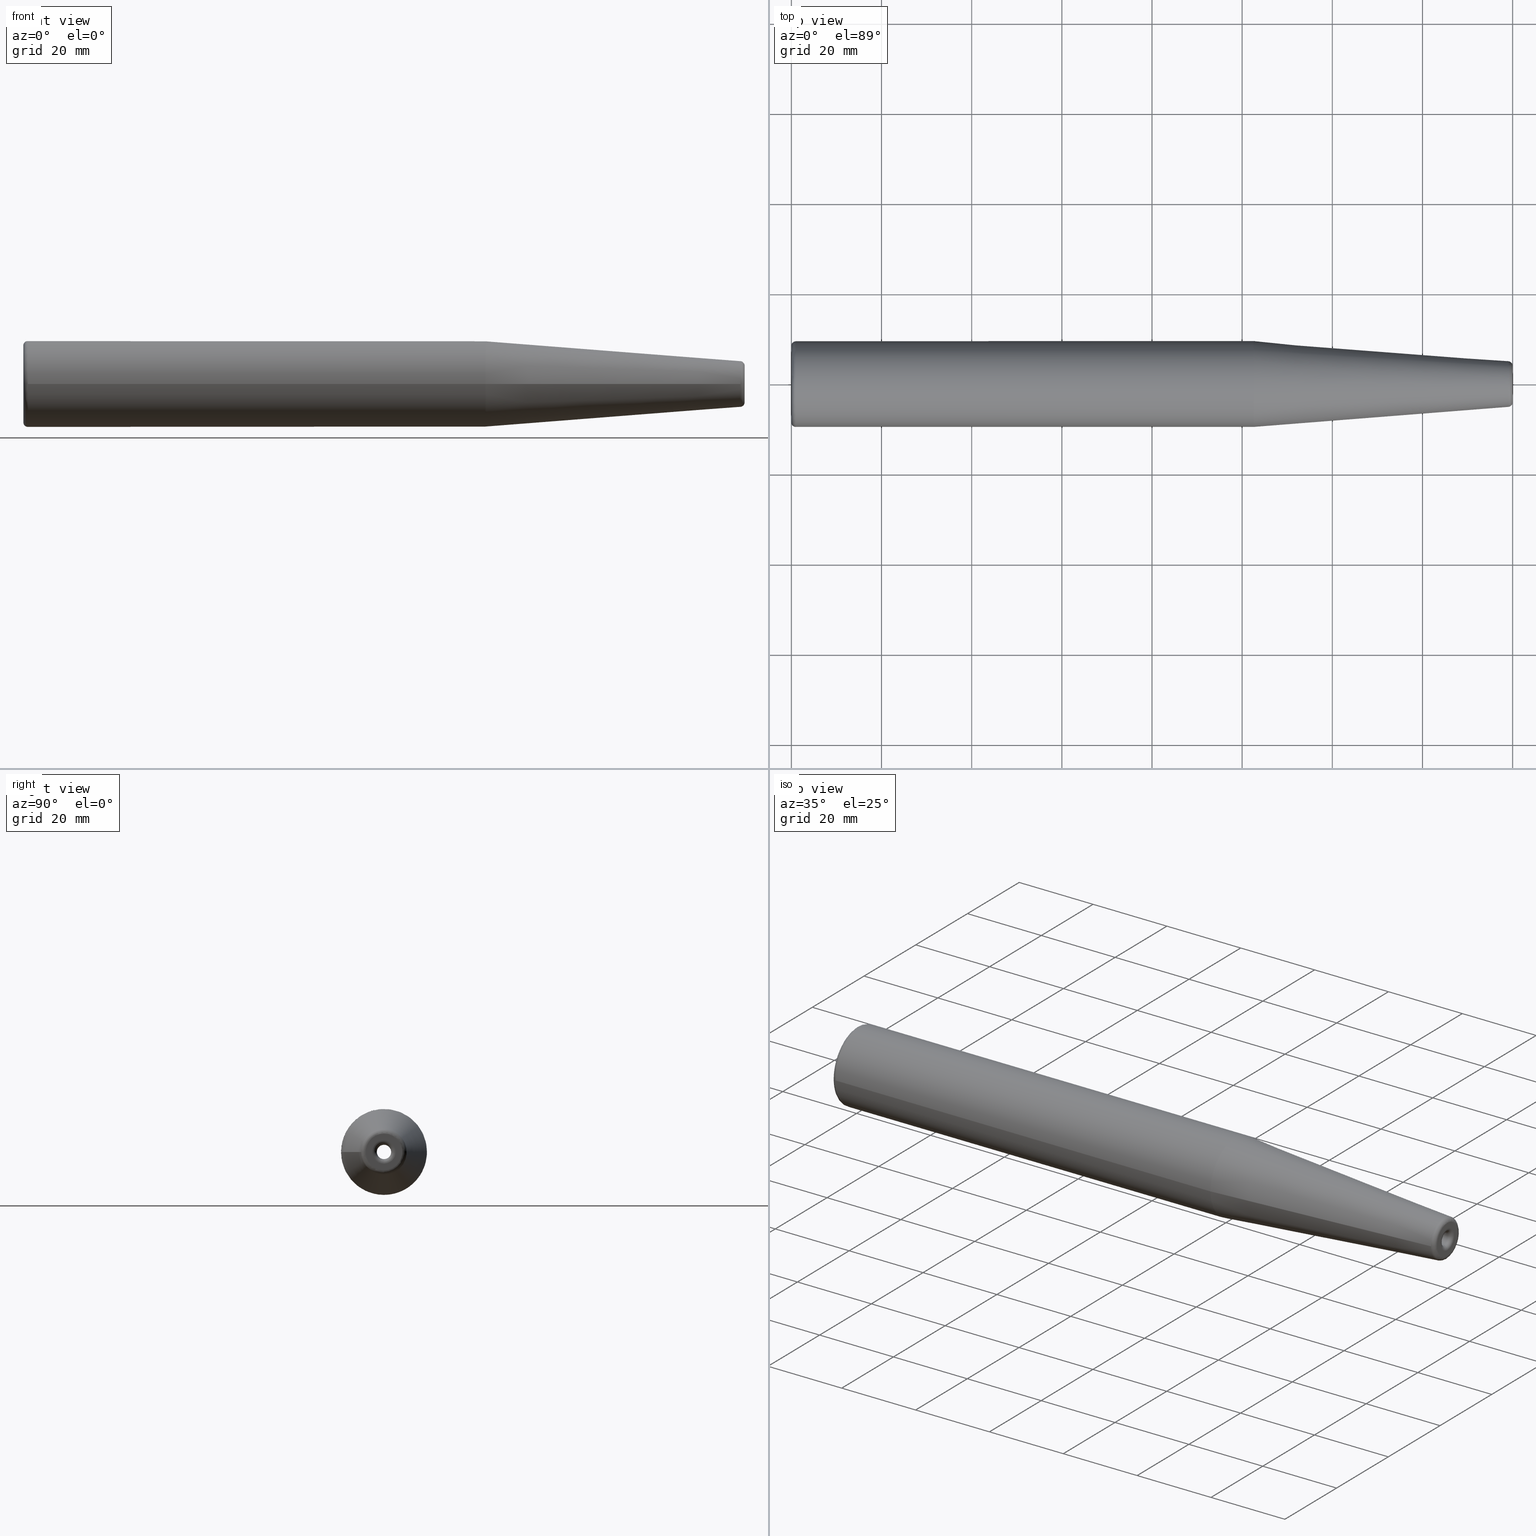
[diagram: canonical four-view strip — front | top / right | iso, engineering-drawing reading convention]
A machine part, canonical four-view strip (front | top / right | iso — engineering-drawing reading convention). The complete STEP part file that produces these views, byte-faithful:
ISO-10303-21;
HEADER;
/* Generated by software containing ST-Developer
 * from STEP Tools, Inc. (www.steptools.com) 
 */

FILE_DESCRIPTION(
/* description */ (''),
/* implementation_level */ '2;1');

FILE_NAME(
/* name */ 'VS030_ST19.05-SFH3.175-160.stp',
/* time_stamp */ '2024-06-20T09:00:01+09:00',
/* author */ ('YSH'),
/* organization */ (''),
/* preprocessor_version */ 'ST-DEVELOPER v20',
/* originating_system */ 'Autodesk Inventor 2024',
/* authorisation */ '');

FILE_SCHEMA (('AUTOMOTIVE_DESIGN { 1 0 10303 214 3 1 1 }'));
ENDSEC;

DATA;
#10=MECHANICAL_DESIGN_GEOMETRIC_PRESENTATION_REPRESENTATION('',(#13),#327);
#11=SHAPE_REPRESENTATION_RELATIONSHIP('SRR','None',#334,#12);
#12=ADVANCED_BREP_SHAPE_REPRESENTATION('',(#14),#326);
#13=STYLED_ITEM('',(#343),#14);
#14=MANIFOLD_SOLID_BREP('\X2\C194B9ACB4DC\X0\1',#166);
#15=CONICAL_SURFACE('',#199,1.25,1.02974425867665);
#16=CONICAL_SURFACE('',#215,7.2625,0.0785398163397451);
#17=FACE_BOUND('',#47,.T.);
#18=FACE_BOUND('',#53,.T.);
#19=PLANE('',#197);
#20=PLANE('',#210);
#21=LINE('',#288,#26);
#22=LINE('',#298,#27);
#23=LINE('',#302,#28);
#24=LINE('',#313,#29);
#25=LINE('',#323,#30);
#26=VECTOR('',#230,1.5875);
#27=VECTOR('',#243,1.25);
#28=VECTOR('',#248,2.5);
#29=VECTOR('',#261,9.52499999999999);
#30=VECTOR('',#276,7.2625);
#31=CYLINDRICAL_SURFACE('',#194,1.5875);
#32=CYLINDRICAL_SURFACE('',#201,2.5);
#33=CYLINDRICAL_SURFACE('',#208,9.52499999999999);
#34=FACE_OUTER_BOUND('',#44,.T.);
#35=FACE_OUTER_BOUND('',#45,.T.);
#36=FACE_OUTER_BOUND('',#46,.T.);
#37=FACE_OUTER_BOUND('',#48,.T.);
#38=FACE_OUTER_BOUND('',#49,.T.);
#39=FACE_OUTER_BOUND('',#50,.T.);
#40=FACE_OUTER_BOUND('',#51,.T.);
#41=FACE_OUTER_BOUND('',#52,.T.);
#42=FACE_OUTER_BOUND('',#54,.T.);
#43=FACE_OUTER_BOUND('',#55,.T.);
#44=EDGE_LOOP('',(#109,#110,#111,#112,#113));
#45=EDGE_LOOP('',(#114,#115,#116,#117,#118,#119));
#46=EDGE_LOOP('',(#120));
#47=EDGE_LOOP('',(#121));
#48=EDGE_LOOP('',(#122,#123,#124,#125,#126));
#49=EDGE_LOOP('',(#127,#128,#129,#130));
#50=EDGE_LOOP('',(#131,#132,#133,#134,#135));
#51=EDGE_LOOP('',(#136,#137,#138,#139,#140));
#52=EDGE_LOOP('',(#141));
#53=EDGE_LOOP('',(#142));
#54=EDGE_LOOP('',(#143,#144,#145,#146,#147));
#55=EDGE_LOOP('',(#148,#149,#150,#151,#152));
#56=CIRCLE('',#190,2.5875);
#57=CIRCLE('',#191,1.);
#58=CIRCLE('',#192,1.5875);
#59=CIRCLE('',#193,1.5875);
#60=CIRCLE('',#195,1.5875);
#61=CIRCLE('',#196,1.5875);
#62=CIRCLE('',#198,4.07560950834179);
#63=CIRCLE('',#200,2.5);
#64=CIRCLE('',#202,2.5);
#65=CIRCLE('',#204,8.52499999999999);
#66=CIRCLE('',#205,1.);
#67=CIRCLE('',#206,9.52499999999999);
#68=CIRCLE('',#207,9.52499999999999);
#69=CIRCLE('',#209,9.525);
#70=CIRCLE('',#212,5.07252684207492);
#71=CIRCLE('',#213,5.07252684207492);
#72=CIRCLE('',#214,1.);
#73=VERTEX_POINT('',#279);
#74=VERTEX_POINT('',#281);
#75=VERTEX_POINT('',#283);
#76=VERTEX_POINT('',#287);
#77=VERTEX_POINT('',#289);
#78=VERTEX_POINT('',#293);
#79=VERTEX_POINT('',#296);
#80=VERTEX_POINT('',#300);
#81=VERTEX_POINT('',#304);
#82=VERTEX_POINT('',#306);
#83=VERTEX_POINT('',#308);
#84=VERTEX_POINT('',#312);
#85=VERTEX_POINT('',#317);
#86=VERTEX_POINT('',#318);
#87=EDGE_CURVE('',#73,#73,#56,.T.);
#88=EDGE_CURVE('',#73,#74,#57,.T.);
#89=EDGE_CURVE('',#74,#75,#58,.T.);
#90=EDGE_CURVE('',#75,#74,#59,.T.);
#91=EDGE_CURVE('',#75,#76,#21,.T.);
#92=EDGE_CURVE('',#77,#76,#60,.T.);
#93=EDGE_CURVE('',#76,#77,#61,.T.);
#94=EDGE_CURVE('',#78,#78,#62,.T.);
#95=EDGE_CURVE('',#79,#79,#63,.T.);
#96=EDGE_CURVE('',#79,#77,#22,.T.);
#97=EDGE_CURVE('',#80,#80,#64,.T.);
#98=EDGE_CURVE('',#80,#79,#23,.T.);
#99=EDGE_CURVE('',#81,#81,#65,.T.);
#100=EDGE_CURVE('',#81,#82,#66,.T.);
#101=EDGE_CURVE('',#82,#83,#67,.T.);
#102=EDGE_CURVE('',#83,#82,#68,.T.);
#103=EDGE_CURVE('',#83,#84,#24,.T.);
#104=EDGE_CURVE('',#84,#84,#69,.T.);
#105=EDGE_CURVE('',#85,#86,#70,.T.);
#106=EDGE_CURVE('',#86,#85,#71,.T.);
#107=EDGE_CURVE('',#85,#78,#72,.T.);
#108=EDGE_CURVE('',#84,#86,#25,.T.);
#109=ORIENTED_EDGE('',*,*,#87,.T.);
#110=ORIENTED_EDGE('',*,*,#88,.T.);
#111=ORIENTED_EDGE('',*,*,#89,.T.);
#112=ORIENTED_EDGE('',*,*,#90,.T.);
#113=ORIENTED_EDGE('',*,*,#88,.F.);
#114=ORIENTED_EDGE('',*,*,#89,.F.);
#115=ORIENTED_EDGE('',*,*,#90,.F.);
#116=ORIENTED_EDGE('',*,*,#91,.T.);
#117=ORIENTED_EDGE('',*,*,#92,.F.);
#118=ORIENTED_EDGE('',*,*,#93,.F.);
#119=ORIENTED_EDGE('',*,*,#91,.F.);
#120=ORIENTED_EDGE('',*,*,#94,.F.);
#121=ORIENTED_EDGE('',*,*,#87,.F.);
#122=ORIENTED_EDGE('',*,*,#95,.T.);
#123=ORIENTED_EDGE('',*,*,#96,.T.);
#124=ORIENTED_EDGE('',*,*,#92,.T.);
#125=ORIENTED_EDGE('',*,*,#93,.T.);
#126=ORIENTED_EDGE('',*,*,#96,.F.);
#127=ORIENTED_EDGE('',*,*,#97,.F.);
#128=ORIENTED_EDGE('',*,*,#98,.T.);
#129=ORIENTED_EDGE('',*,*,#95,.F.);
#130=ORIENTED_EDGE('',*,*,#98,.F.);
#131=ORIENTED_EDGE('',*,*,#99,.T.);
#132=ORIENTED_EDGE('',*,*,#100,.T.);
#133=ORIENTED_EDGE('',*,*,#101,.T.);
#134=ORIENTED_EDGE('',*,*,#102,.T.);
#135=ORIENTED_EDGE('',*,*,#100,.F.);
#136=ORIENTED_EDGE('',*,*,#102,.F.);
#137=ORIENTED_EDGE('',*,*,#103,.T.);
#138=ORIENTED_EDGE('',*,*,#104,.T.);
#139=ORIENTED_EDGE('',*,*,#103,.F.);
#140=ORIENTED_EDGE('',*,*,#101,.F.);
#141=ORIENTED_EDGE('',*,*,#99,.F.);
#142=ORIENTED_EDGE('',*,*,#97,.T.);
#143=ORIENTED_EDGE('',*,*,#105,.T.);
#144=ORIENTED_EDGE('',*,*,#106,.T.);
#145=ORIENTED_EDGE('',*,*,#107,.T.);
#146=ORIENTED_EDGE('',*,*,#94,.T.);
#147=ORIENTED_EDGE('',*,*,#107,.F.);
#148=ORIENTED_EDGE('',*,*,#104,.F.);
#149=ORIENTED_EDGE('',*,*,#108,.T.);
#150=ORIENTED_EDGE('',*,*,#105,.F.);
#151=ORIENTED_EDGE('',*,*,#106,.F.);
#152=ORIENTED_EDGE('',*,*,#108,.F.);
#153=TOROIDAL_SURFACE('',#189,2.5875,1.);
#154=TOROIDAL_SURFACE('',#203,8.52499999999999,1.);
#155=TOROIDAL_SURFACE('',#211,4.07560950834179,1.);
#156=ADVANCED_FACE('',(#34),#153,.T.);
#157=ADVANCED_FACE('',(#35),#31,.F.);
#158=ADVANCED_FACE('',(#36,#17),#19,.T.);
#159=ADVANCED_FACE('',(#37),#15,.F.);
#160=ADVANCED_FACE('',(#38),#32,.F.);
#161=ADVANCED_FACE('',(#39),#154,.T.);
#162=ADVANCED_FACE('',(#40),#33,.T.);
#163=ADVANCED_FACE('',(#41,#18),#20,.T.);
#164=ADVANCED_FACE('',(#42),#155,.T.);
#165=ADVANCED_FACE('',(#43),#16,.T.);
#166=CLOSED_SHELL('',(#156,#157,#158,#159,#160,#161,#162,#163,#164,#165));
#167=DERIVED_UNIT_ELEMENT(#170,1.);
#168=DERIVED_UNIT_ELEMENT(#329,-3.);
#169=DIMENSIONAL_EXPONENTS(0.,1.,0.,0.,0.,0.,0.);
#170=(
CONVERSION_BASED_UNIT('gram',#172)
MASS_UNIT()
NAMED_UNIT(#169)
);
#171=(
MASS_UNIT()
NAMED_UNIT(*)
SI_UNIT(.KILO.,.GRAM.)
);
#172=MASS_MEASURE_WITH_UNIT(MASS_MEASURE(0.001),#171);
#173=DERIVED_UNIT((#167,#168));
#174=MEASURE_REPRESENTATION_ITEM('density measure',
POSITIVE_RATIO_MEASURE(1.),#173);
#175=PROPERTY_DEFINITION_REPRESENTATION(#180,#177);
#176=PROPERTY_DEFINITION_REPRESENTATION(#181,#178);
#177=REPRESENTATION('material name',(#179),#326);
#178=REPRESENTATION('density',(#174),#326);
#179=DESCRIPTIVE_REPRESENTATION_ITEM('\X2\C77CBC18\X0\','\X2\C77CBC18\X0\');
#180=PROPERTY_DEFINITION('material property','material name',#336);
#181=PROPERTY_DEFINITION('material property','density of part',#336);
#182=DATE_TIME_ROLE('creation_date');
#183=APPLIED_DATE_AND_TIME_ASSIGNMENT(#184,#182,(#336));
#184=DATE_AND_TIME(#185,#186);
#185=CALENDAR_DATE(2024,15,1);
#186=LOCAL_TIME(0,0,0.,#187);
#187=COORDINATED_UNIVERSAL_TIME_OFFSET(0,0,.BEHIND.);
#188=AXIS2_PLACEMENT_3D('',#277,#216,#217);
#189=AXIS2_PLACEMENT_3D('',#278,#218,#219);
#190=AXIS2_PLACEMENT_3D('',#280,#220,#221);
#191=AXIS2_PLACEMENT_3D('',#282,#222,#223);
#192=AXIS2_PLACEMENT_3D('',#284,#224,#225);
#193=AXIS2_PLACEMENT_3D('',#285,#226,#227);
#194=AXIS2_PLACEMENT_3D('',#286,#228,#229);
#195=AXIS2_PLACEMENT_3D('',#290,#231,#232);
#196=AXIS2_PLACEMENT_3D('',#291,#233,#234);
#197=AXIS2_PLACEMENT_3D('',#292,#235,#236);
#198=AXIS2_PLACEMENT_3D('',#294,#237,#238);
#199=AXIS2_PLACEMENT_3D('',#295,#239,#240);
#200=AXIS2_PLACEMENT_3D('',#297,#241,#242);
#201=AXIS2_PLACEMENT_3D('',#299,#244,#245);
#202=AXIS2_PLACEMENT_3D('',#301,#246,#247);
#203=AXIS2_PLACEMENT_3D('',#303,#249,#250);
#204=AXIS2_PLACEMENT_3D('',#305,#251,#252);
#205=AXIS2_PLACEMENT_3D('',#307,#253,#254);
#206=AXIS2_PLACEMENT_3D('',#309,#255,#256);
#207=AXIS2_PLACEMENT_3D('',#310,#257,#258);
#208=AXIS2_PLACEMENT_3D('',#311,#259,#260);
#209=AXIS2_PLACEMENT_3D('',#314,#262,#263);
#210=AXIS2_PLACEMENT_3D('',#315,#264,#265);
#211=AXIS2_PLACEMENT_3D('',#316,#266,#267);
#212=AXIS2_PLACEMENT_3D('',#319,#268,#269);
#213=AXIS2_PLACEMENT_3D('',#320,#270,#271);
#214=AXIS2_PLACEMENT_3D('',#321,#272,#273);
#215=AXIS2_PLACEMENT_3D('',#322,#274,#275);
#216=DIRECTION('axis',(0.,0.,1.));
#217=DIRECTION('refdir',(1.,0.,0.));
#218=DIRECTION('center_axis',(-1.,0.,0.));
#219=DIRECTION('ref_axis',(0.,0.,1.));
#220=DIRECTION('center_axis',(1.,0.,0.));
#221=DIRECTION('ref_axis',(0.,-1.22464679914735E-16,1.));
#222=DIRECTION('center_axis',(0.,-1.,1.22464679914735E-16));
#223=DIRECTION('ref_axis',(0.,-1.22464679914735E-16,-1.));
#224=DIRECTION('center_axis',(-1.,0.,0.));
#225=DIRECTION('ref_axis',(0.,-1.22464679914735E-16,1.));
#226=DIRECTION('center_axis',(-1.,0.,0.));
#227=DIRECTION('ref_axis',(0.,-1.22464679914735E-16,1.));
#228=DIRECTION('center_axis',(1.,0.,0.));
#229=DIRECTION('ref_axis',(0.,0.,-1.));
#230=DIRECTION('',(-1.,0.,0.));
#231=DIRECTION('center_axis',(1.,0.,0.));
#232=DIRECTION('ref_axis',(0.,0.,-1.));
#233=DIRECTION('center_axis',(1.,0.,0.));
#234=DIRECTION('ref_axis',(0.,0.,-1.));
#235=DIRECTION('center_axis',(1.,0.,0.));
#236=DIRECTION('ref_axis',(0.,0.,-1.));
#237=DIRECTION('center_axis',(-1.,0.,0.));
#238=DIRECTION('ref_axis',(0.,-1.,-1.83697019872103E-16));
#239=DIRECTION('center_axis',(-1.,0.,0.));
#240=DIRECTION('ref_axis',(0.,0.,1.));
#241=DIRECTION('center_axis',(-1.,0.,0.));
#242=DIRECTION('ref_axis',(0.,0.,1.));
#243=DIRECTION('',(0.515038074910054,1.04972719113862E-16,0.857167300702112));
#244=DIRECTION('center_axis',(-1.,0.,0.));
#245=DIRECTION('ref_axis',(0.,0.,1.));
#246=DIRECTION('center_axis',(1.,0.,0.));
#247=DIRECTION('ref_axis',(0.,0.,1.));
#248=DIRECTION('',(1.,0.,0.));
#249=DIRECTION('center_axis',(-1.,0.,0.));
#250=DIRECTION('ref_axis',(0.,0.,1.));
#251=DIRECTION('center_axis',(1.,0.,0.));
#252=DIRECTION('ref_axis',(0.,-1.,-1.83697019872103E-16));
#253=DIRECTION('center_axis',(0.,-1.,1.22464679914735E-16));
#254=DIRECTION('ref_axis',(0.,-1.22464679914735E-16,-1.));
#255=DIRECTION('center_axis',(-1.,0.,0.));
#256=DIRECTION('ref_axis',(0.,-1.,-1.83697019872103E-16));
#257=DIRECTION('center_axis',(-1.,0.,0.));
#258=DIRECTION('ref_axis',(0.,-1.,-1.83697019872103E-16));
#259=DIRECTION('center_axis',(-1.,0.,0.));
#260=DIRECTION('ref_axis',(0.,1.,0.));
#261=DIRECTION('',(1.,0.,0.));
#262=DIRECTION('center_axis',(-1.,0.,0.));
#263=DIRECTION('ref_axis',(0.,0.,1.));
#264=DIRECTION('center_axis',(-1.,0.,0.));
#265=DIRECTION('ref_axis',(0.,0.,1.));
#266=DIRECTION('center_axis',(-1.,0.,0.));
#267=DIRECTION('ref_axis',(0.,0.,1.));
#268=DIRECTION('center_axis',(1.,0.,0.));
#269=DIRECTION('ref_axis',(0.,-1.,-3.06161699786838E-17));
#270=DIRECTION('center_axis',(1.,0.,0.));
#271=DIRECTION('ref_axis',(0.,-1.,-3.06161699786838E-17));
#272=DIRECTION('center_axis',(0.,-1.,1.22464679914735E-16));
#273=DIRECTION('ref_axis',(0.,-1.22464679914735E-16,-1.));
#274=DIRECTION('center_axis',(-1.,0.,0.));
#275=DIRECTION('ref_axis',(0.,1.,0.));
#276=DIRECTION('',(0.996917333733128,0.0784590957278452,-9.60846804471015E-18));
#277=CARTESIAN_POINT('',(0.,0.,0.));
#278=CARTESIAN_POINT('Origin',(-1.00000000000001,0.,0.));
#279=CARTESIAN_POINT('',(0.,6.33754718558755E-16,-2.5875));
#280=CARTESIAN_POINT('Origin',(0.,0.,0.));
#281=CARTESIAN_POINT('',(-1.00000000000001,0.,-1.5875));
#282=CARTESIAN_POINT('Origin',(-1.00000000000001,-3.16877359279378E-16,
-2.5875));
#283=CARTESIAN_POINT('',(-1.00000000000001,-1.94412679364642E-16,1.5875));
#284=CARTESIAN_POINT('Origin',(-1.00000000000001,0.,0.));
#285=CARTESIAN_POINT('Origin',(-1.00000000000001,0.,0.));
#286=CARTESIAN_POINT('Origin',(-162.252288119459,0.,0.));
#287=CARTESIAN_POINT('',(-8.94171468513736,-1.94412679364642E-16,1.5875));
#288=CARTESIAN_POINT('',(-162.252288119459,-1.94412679364642E-16,1.5875));
#289=CARTESIAN_POINT('',(-8.94171468513736,-1.94412679364643E-16,-1.5875));
#290=CARTESIAN_POINT('Origin',(-8.94171468513736,0.,0.));
#291=CARTESIAN_POINT('Origin',(-8.94171468513736,0.,0.));
#292=CARTESIAN_POINT('Origin',(0.,5.,0.));
#293=CARTESIAN_POINT('',(0.,-4.9911821389653E-16,-4.07560950834179));
#294=CARTESIAN_POINT('Origin',(0.,0.,0.));
#295=CARTESIAN_POINT('Origin',(-8.73892422621555,0.,0.));
#296=CARTESIAN_POINT('',(-9.49,-3.06161699786838E-16,-2.5));
#297=CARTESIAN_POINT('Origin',(-9.49,0.,0.));
#298=CARTESIAN_POINT('',(-8.73892422621555,-1.53080849893419E-16,-1.25));
#299=CARTESIAN_POINT('Origin',(-84.745,0.,0.));
#300=CARTESIAN_POINT('',(-160.,-3.06161699786838E-16,-2.5));
#301=CARTESIAN_POINT('Origin',(-160.,0.,0.));
#302=CARTESIAN_POINT('',(-84.745,-3.06161699786838E-16,-2.5));
#303=CARTESIAN_POINT('Origin',(-159.,0.,0.));
#304=CARTESIAN_POINT('',(-160.,-1.04401139627312E-15,-8.52499999999999));
#305=CARTESIAN_POINT('Origin',(-160.,0.,0.));
#306=CARTESIAN_POINT('',(-159.,-1.16647607618785E-15,-9.52499999999999));
#307=CARTESIAN_POINT('Origin',(-159.,-1.04401139627312E-15,-8.52499999999999));
#308=CARTESIAN_POINT('',(-159.,-9.52499999999999,1.16647607618785E-15));
#309=CARTESIAN_POINT('Origin',(-159.,0.,0.));
#310=CARTESIAN_POINT('Origin',(-159.,0.,0.));
#311=CARTESIAN_POINT('Origin',(-108.747788215595,0.,0.));
#312=CARTESIAN_POINT('',(-57.4955764311903,-9.52499999999999,1.16647607618785E-15));
#313=CARTESIAN_POINT('',(-108.747788215595,-9.52499999999999,1.16647607618785E-15));
#314=CARTESIAN_POINT('Origin',(-57.4955764311903,0.,0.));
#315=CARTESIAN_POINT('Origin',(-160.,0.,0.));
#316=CARTESIAN_POINT('Origin',(-0.999999999999996,0.,0.));
#317=CARTESIAN_POINT('',(-0.921540904272153,-6.21205376073608E-16,-5.07252684207492));
#318=CARTESIAN_POINT('',(-0.921540904272153,-5.07252684207492,6.21205376073608E-16));
#319=CARTESIAN_POINT('Origin',(-0.921540904272153,0.,7.7650672009201E-16));
#320=CARTESIAN_POINT('Origin',(-0.921540904272153,0.,7.7650672009201E-16));
#321=CARTESIAN_POINT('Origin',(-0.999999999999996,-4.9911821389653E-16,
-4.07560950834179));
#322=CARTESIAN_POINT('Origin',(-28.7477882155951,0.,0.));
#323=CARTESIAN_POINT('',(-28.7477882155951,-7.2625,8.89399737880765E-16));
#324=UNCERTAINTY_MEASURE_WITH_UNIT(LENGTH_MEASURE(0.01),#328,
'DISTANCE_ACCURACY_VALUE',
'Maximum model space distance between geometric entities at asserted c
onnectivities');
#325=UNCERTAINTY_MEASURE_WITH_UNIT(LENGTH_MEASURE(0.01),#328,
'DISTANCE_ACCURACY_VALUE',
'Maximum model space distance between geometric entities at asserted c
onnectivities');
#326=(
GEOMETRIC_REPRESENTATION_CONTEXT(3)
GLOBAL_UNCERTAINTY_ASSIGNED_CONTEXT((#324))
GLOBAL_UNIT_ASSIGNED_CONTEXT((#328,#330,#331))
REPRESENTATION_CONTEXT('','3D')
);
#327=(
GEOMETRIC_REPRESENTATION_CONTEXT(3)
GLOBAL_UNCERTAINTY_ASSIGNED_CONTEXT((#325))
GLOBAL_UNIT_ASSIGNED_CONTEXT((#328,#330,#331))
REPRESENTATION_CONTEXT('','3D')
);
#328=(
LENGTH_UNIT()
NAMED_UNIT(*)
SI_UNIT(.MILLI.,.METRE.)
);
#329=(
LENGTH_UNIT()
NAMED_UNIT(*)
SI_UNIT(.CENTI.,.METRE.)
);
#330=(
NAMED_UNIT(*)
PLANE_ANGLE_UNIT()
SI_UNIT($,.RADIAN.)
);
#331=(
NAMED_UNIT(*)
SI_UNIT($,.STERADIAN.)
SOLID_ANGLE_UNIT()
);
#332=SHAPE_DEFINITION_REPRESENTATION(#333,#334);
#333=PRODUCT_DEFINITION_SHAPE('',$,#336);
#334=SHAPE_REPRESENTATION('',(#188),#326);
#335=PRODUCT_DEFINITION_CONTEXT('part definition',#340,'design');
#336=PRODUCT_DEFINITION('LO-ST19.05-SFH3.175-160',
'LO-ST19.05-SFH3.175-160',#337,#335);
#337=PRODUCT_DEFINITION_FORMATION('',$,#342);
#338=PRODUCT_RELATED_PRODUCT_CATEGORY('LO-ST19.05-SFH3.175-160',
'LO-ST19.05-SFH3.175-160',(#342));
#339=APPLICATION_PROTOCOL_DEFINITION('international standard',
'automotive_design',2009,#340);
#340=APPLICATION_CONTEXT(
'Core Data for Automotive Mechanical Design Process');
#341=PRODUCT_CONTEXT('part definition',#340,'mechanical');
#342=PRODUCT('LO-ST19.05-SFH3.175-160','LO-ST19.05-SFH3.175-160',$,(#341));
#343=PRESENTATION_STYLE_ASSIGNMENT((#344));
#344=SURFACE_STYLE_USAGE(.BOTH.,#347);
#345=SURFACE_STYLE_RENDERING_WITH_PROPERTIES($,#351,(#346));
#346=SURFACE_STYLE_TRANSPARENT(0.);
#347=SURFACE_SIDE_STYLE('',(#348,#345));
#348=SURFACE_STYLE_FILL_AREA(#349);
#349=FILL_AREA_STYLE('',(#350));
#350=FILL_AREA_STYLE_COLOUR('',#351);
#351=COLOUR_RGB('',0.749019607843137,0.749019607843137,0.749019607843137);
ENDSEC;
END-ISO-10303-21;
